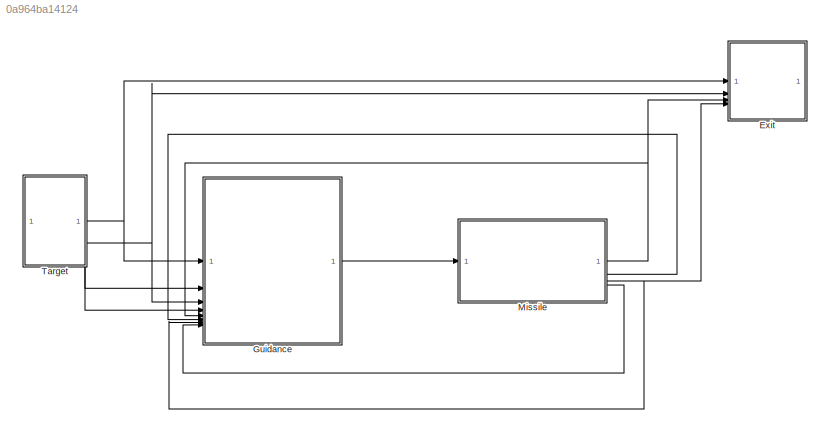
MODEL slx_0a964ba14124
KIND model
CONFIG AbsTol = auto
CONFIG EnableMultiTasking = off
CONFIG FixedStep = dt
CONFIG MaxStep = auto
CONFIG MinStep = auto
CONFIG RelTol = 1e-3
CONFIG SampleTimeConstraint = Unconstrained
CONFIG SolverName = ode5
CONFIG StartTime = 0.0
CONFIG StopTime = tf
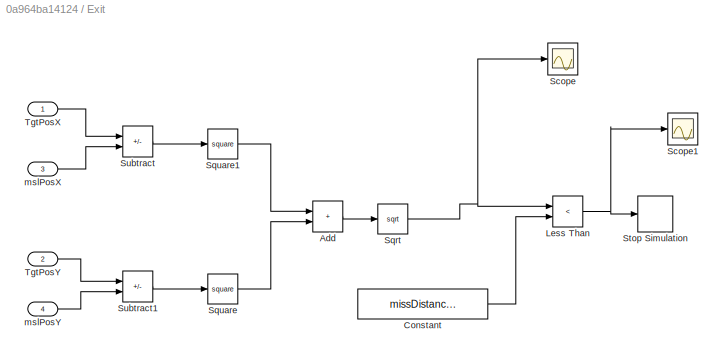
BLOCK [SubSystem] Exit
BLOCK [Sum] Exit/Add
  IconShape = rectangular
BLOCK [Constant] Exit/Constant
  Value = missDistanceThreshold
BLOCK [RelationalOperator] Exit/Less Than
  InputSameDT = off
  Operator = <
  OutDataTypeStr = boolean
  RndMeth = Simplest
BLOCK [Scope] Exit/Scope
  Floating = off
  NumInputPorts = 1
  ScopeSpecificationString = Simulink.scopes.TimeScopeBlockCfg('CurrentConfiguration', extmgr.ConfigurationSet(extmgr.Configuration('Core','General UI',true),extmgr.Configuration('Core','Source UI',true),extmgr.Configuration('Sources','WiredSimulink',true,'DataLoggingVariableName','ScopeData18'),extmgr.Configuration('Visuals','Time Domain',true,'SerializedDisplays',{struct('MinYLimReal','-37.14125','MaxYLimReal','344.06144','...<+1404ch>
BLOCK [Scope] Exit/Scope1
  Floating = off
  NumInputPorts = 1
  ScopeSpecificationString = Simulink.scopes.TimeScopeBlockCfg('CurrentConfiguration', extmgr.ConfigurationSet(extmgr.Configuration('Core','General UI',true),extmgr.Configuration('Core','Source UI',true),extmgr.Configuration('Sources','WiredSimulink',true,'DataLoggingVariableName','ScopeData19'),extmgr.Configuration('Visuals','Time Domain',true,'SerializedDisplays',{struct('MinYLimReal','-0.125','MaxYLimReal','1.125','YLabelR...<+1387ch>
BLOCK [Sqrt] Exit/Sqrt
BLOCK [Math] Exit/Square
  Operator = square
BLOCK [Math] Exit/Square1
  Operator = square
BLOCK [Stop] Exit/Stop Simulation
BLOCK [Sum] Exit/Subtract
  IconShape = rectangular
  Inputs = +-
BLOCK [Sum] Exit/Subtract1
  IconShape = rectangular
  Inputs = +-
BLOCK [Inport] Exit/TgtPosX
BLOCK [Inport] Exit/TgtPosY
  Port = 2
BLOCK [Inport] Exit/mslPosX
  Port = 3
BLOCK [Inport] Exit/mslPosY
  Port = 4
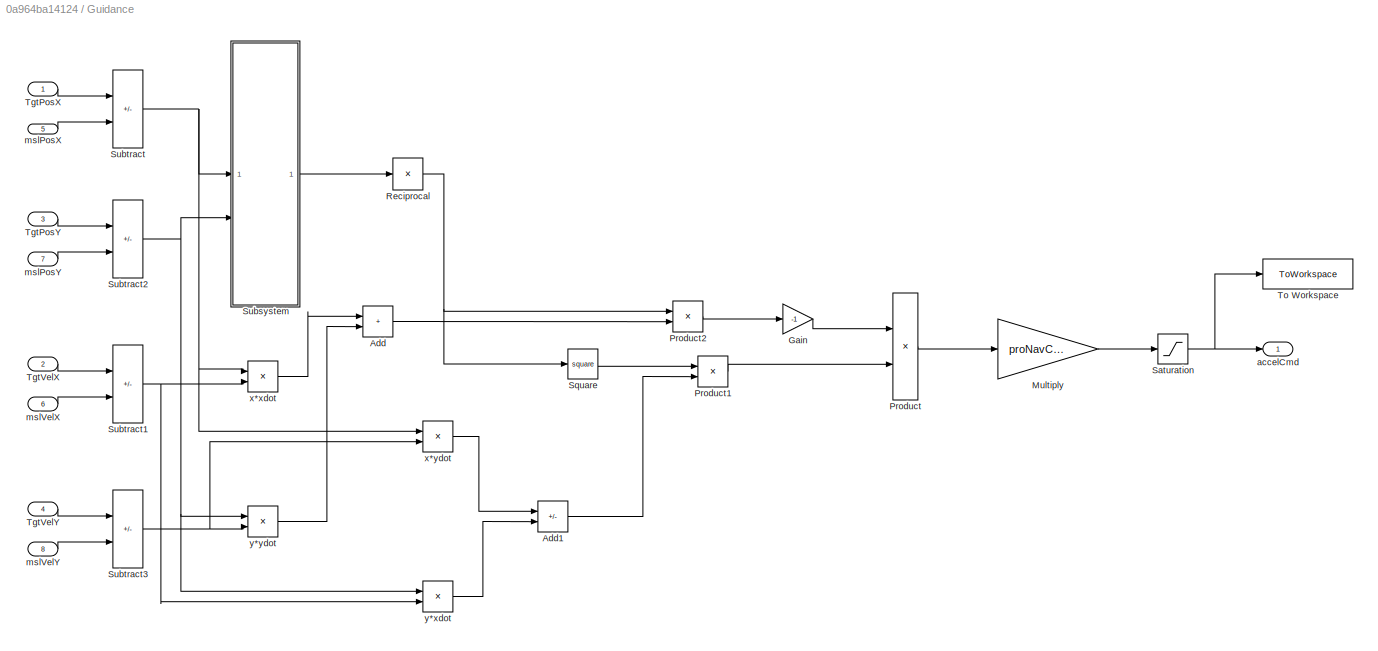
BLOCK [SubSystem] Guidance
BLOCK [Sum] Guidance/Add
  IconShape = rectangular
BLOCK [Sum] Guidance/Add1
  IconShape = rectangular
  Inputs = +-
BLOCK [Gain] Guidance/Gain
  Gain = -1
BLOCK [Gain] Guidance/Multiply
  Gain = proNavConst
BLOCK [Product] Guidance/Product
BLOCK [Product] Guidance/Product1
BLOCK [Product] Guidance/Product2
BLOCK [Product] Guidance/Reciprocal
  Inputs = /
BLOCK [Saturate] Guidance/Saturation
  LowerLimit = -50
  UpperLimit = 50
BLOCK [Math] Guidance/Square
  Operator = square
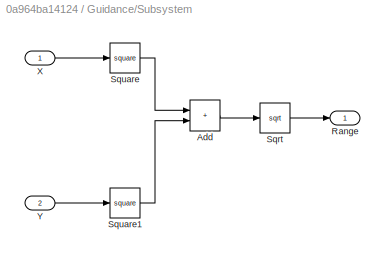
BLOCK [SubSystem] Guidance/Subsystem
BLOCK [Sum] Guidance/Subsystem/Add
  IconShape = rectangular
BLOCK [Outport] Guidance/Subsystem/Range
BLOCK [Sqrt] Guidance/Subsystem/Sqrt
BLOCK [Math] Guidance/Subsystem/Square
  Operator = square
BLOCK [Math] Guidance/Subsystem/Square1
  Operator = square
BLOCK [Inport] Guidance/Subsystem/X
BLOCK [Inport] Guidance/Subsystem/Y
  Port = 2
BLOCK [Sum] Guidance/Subtract
  IconShape = rectangular
  Inputs = +-
BLOCK [Sum] Guidance/Subtract1
  IconShape = rectangular
  Inputs = +-
BLOCK [Sum] Guidance/Subtract2
  IconShape = rectangular
  Inputs = +-
BLOCK [Sum] Guidance/Subtract3
  IconShape = rectangular
  Inputs = +-
BLOCK [Inport] Guidance/TgtPosX
BLOCK [Inport] Guidance/TgtPosY
  Port = 3
BLOCK [Inport] Guidance/TgtVelX
  Port = 2
BLOCK [Inport] Guidance/TgtVelY
  Port = 4
BLOCK [ToWorkspace] Guidance/To Workspace
  FixptAsFi = on
  MaxDataPoints = inf
  SampleTime = -1
  VariableName = accelY
BLOCK [Outport] Guidance/accelCmd
BLOCK [Inport] Guidance/mslPosX
  Port = 5
BLOCK [Inport] Guidance/mslPosY
  Port = 7
BLOCK [Inport] Guidance/mslVelX
  Port = 6
BLOCK [Inport] Guidance/mslVelY
  Port = 8
BLOCK [Product] Guidance/x*xdot
BLOCK [Product] Guidance/x*ydot
BLOCK [Product] Guidance/y*xdot
BLOCK [Product] Guidance/y*ydot
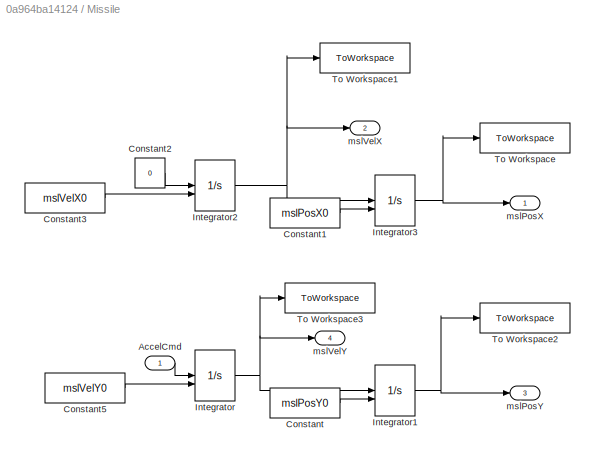
BLOCK [SubSystem] Missile
BLOCK [Inport] Missile/AccelCmd
BLOCK [Constant] Missile/Constant
  Value = mslPosY0
BLOCK [Constant] Missile/Constant1
  Value = mslPosX0
BLOCK [Constant] Missile/Constant2
  Value = 0
BLOCK [Constant] Missile/Constant3
  Value = mslVelX0
BLOCK [Constant] Missile/Constant5
  Value = mslVelY0
BLOCK [Integrator] Missile/Integrator
  InitialConditionSource = external
BLOCK [Integrator] Missile/Integrator1
  InitialConditionSource = external
BLOCK [Integrator] Missile/Integrator2
  InitialConditionSource = external
BLOCK [Integrator] Missile/Integrator3
  InitialConditionSource = external
BLOCK [ToWorkspace] Missile/To Workspace
  FixptAsFi = on
  MaxDataPoints = inf
  SampleTime = -1
  VariableName = mslPosX
BLOCK [ToWorkspace] Missile/To Workspace1
  FixptAsFi = on
  MaxDataPoints = inf
  SampleTime = -1
  VariableName = mslVelX
BLOCK [ToWorkspace] Missile/To Workspace2
  FixptAsFi = on
  MaxDataPoints = inf
  SampleTime = -1
  VariableName = mslPosY
BLOCK [ToWorkspace] Missile/To Workspace3
  FixptAsFi = on
  MaxDataPoints = inf
  SampleTime = -1
  VariableName = mslVelY
BLOCK [Outport] Missile/mslPosX
BLOCK [Outport] Missile/mslPosY
  Port = 3
BLOCK [Outport] Missile/mslVelX
  Port = 2
BLOCK [Outport] Missile/mslVelY
  Port = 4
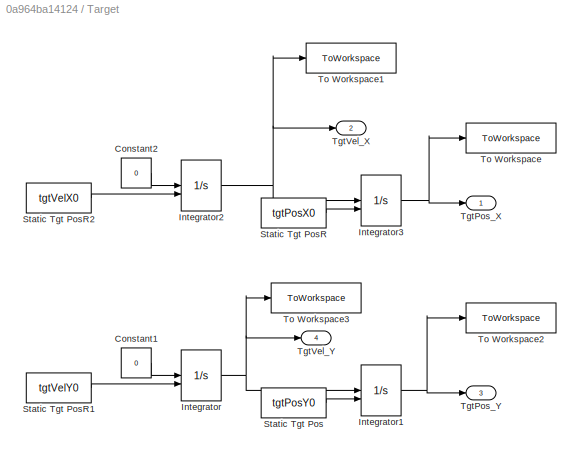
BLOCK [SubSystem] Target
BLOCK [Constant] Target/Constant1
  Value = 0
BLOCK [Constant] Target/Constant2
  Value = 0
BLOCK [Integrator] Target/Integrator
  InitialConditionSource = external
BLOCK [Integrator] Target/Integrator1
  InitialConditionSource = external
BLOCK [Integrator] Target/Integrator2
  InitialConditionSource = external
BLOCK [Integrator] Target/Integrator3
  InitialConditionSource = external
BLOCK [Constant] Target/Static Tgt Pos
  Value = tgtPosY0
BLOCK [Constant] Target/Static Tgt PosR
  Value = tgtPosX0
BLOCK [Constant] Target/Static Tgt PosR1
  Value = tgtVelY0
BLOCK [Constant] Target/Static Tgt PosR2
  Value = tgtVelX0
BLOCK [Outport] Target/TgtPos_X
BLOCK [Outport] Target/TgtPos_Y
  Port = 3
BLOCK [Outport] Target/TgtVel_X
  Port = 2
BLOCK [Outport] Target/TgtVel_Y
  Port = 4
BLOCK [ToWorkspace] Target/To Workspace
  FixptAsFi = on
  MaxDataPoints = inf
  SampleTime = -1
  VariableName = tgtPosX
BLOCK [ToWorkspace] Target/To Workspace1
  FixptAsFi = on
  MaxDataPoints = inf
  SampleTime = -1
  VariableName = tgtVelX
BLOCK [ToWorkspace] Target/To Workspace2
  FixptAsFi = on
  MaxDataPoints = inf
  SampleTime = -1
  VariableName = tgtPosY
BLOCK [ToWorkspace] Target/To Workspace3
  FixptAsFi = on
  MaxDataPoints = inf
  SampleTime = -1
  VariableName = tgtVelY
LINE Exit/Add:1 -> Exit/Sqrt:1
LINE Exit/Constant:1 -> Exit/Less Than:2
NET Exit/Less Than:1 -> Exit/Scope1:1, Exit/Stop Simulation:1
NET Exit/Sqrt:1 -> Exit/Less Than:1, Exit/Scope:1
LINE Exit/Square1:1 -> Exit/Add:1
LINE Exit/Square:1 -> Exit/Add:2
LINE Exit/Subtract1:1 -> Exit/Square:1
LINE Exit/Subtract:1 -> Exit/Square1:1
LINE Exit/TgtPosX:1 -> Exit/Subtract:1
LINE Exit/TgtPosY:1 -> Exit/Subtract1:1
LINE Exit/mslPosX:1 -> Exit/Subtract:2
LINE Exit/mslPosY:1 -> Exit/Subtract1:2
LINE Guidance/Add1:1 -> Guidance/Product1:2
LINE Guidance/Add:1 -> Guidance/Product2:2
LINE Guidance/Gain:1 -> Guidance/Product:1
LINE Guidance/Multiply:1 -> Guidance/Saturation:1
LINE Guidance/Product1:1 -> Guidance/Product:2
LINE Guidance/Product2:1 -> Guidance/Gain:1
LINE Guidance/Product:1 -> Guidance/Multiply:1
NET Guidance/Reciprocal:1 -> Guidance/Product2:1, Guidance/Square:1
NET Guidance/Saturation:1 -> Guidance/To Workspace:1, Guidance/accelCmd:1
LINE Guidance/Square:1 -> Guidance/Product1:1
LINE Guidance/Subsystem/Add:1 -> Guidance/Subsystem/Sqrt:1
LINE Guidance/Subsystem/Sqrt:1 -> Guidance/Subsystem/Range:1
LINE Guidance/Subsystem/Square1:1 -> Guidance/Subsystem/Add:2
LINE Guidance/Subsystem/Square:1 -> Guidance/Subsystem/Add:1
LINE Guidance/Subsystem/X:1 -> Guidance/Subsystem/Square:1
LINE Guidance/Subsystem/Y:1 -> Guidance/Subsystem/Square1:1
LINE Guidance/Subsystem:1 -> Guidance/Reciprocal:1
NET Guidance/Subtract1:1 -> Guidance/x*xdot:2, Guidance/y*xdot:2
NET Guidance/Subtract2:1 -> Guidance/Subsystem:2, Guidance/y*xdot:1, Guidance/y*ydot:1
NET Guidance/Subtract3:1 -> Guidance/x*ydot:2, Guidance/y*ydot:2
NET Guidance/Subtract:1 -> Guidance/Subsystem:1, Guidance/x*xdot:1, Guidance/x*ydot:1
LINE Guidance/TgtPosX:1 -> Guidance/Subtract:1
LINE Guidance/TgtPosY:1 -> Guidance/Subtract2:1
LINE Guidance/TgtVelX:1 -> Guidance/Subtract1:1
LINE Guidance/TgtVelY:1 -> Guidance/Subtract3:1
LINE Guidance/mslPosX:1 -> Guidance/Subtract:2
LINE Guidance/mslPosY:1 -> Guidance/Subtract2:2
LINE Guidance/mslVelX:1 -> Guidance/Subtract1:2
LINE Guidance/mslVelY:1 -> Guidance/Subtract3:2
LINE Guidance/x*xdot:1 -> Guidance/Add:1
LINE Guidance/x*ydot:1 -> Guidance/Add1:1
LINE Guidance/y*xdot:1 -> Guidance/Add1:2
LINE Guidance/y*ydot:1 -> Guidance/Add:2
LINE Guidance:1 -> Missile:1
LINE Missile/AccelCmd:1 -> Missile/Integrator:1
LINE Missile/Constant1:1 -> Missile/Integrator3:2
LINE Missile/Constant2:1 -> Missile/Integrator2:1
LINE Missile/Constant3:1 -> Missile/Integrator2:2
LINE Missile/Constant5:1 -> Missile/Integrator:2
LINE Missile/Constant:1 -> Missile/Integrator1:2
NET Missile/Integrator1:1 -> Missile/To Workspace2:1, Missile/mslPosY:1
NET Missile/Integrator2:1 -> Missile/Integrator3:1, Missile/To Workspace1:1, Missile/mslVelX:1
NET Missile/Integrator3:1 -> Missile/To Workspace:1, Missile/mslPosX:1
NET Missile/Integrator:1 -> Missile/Integrator1:1, Missile/To Workspace3:1, Missile/mslVelY:1
NET Missile:1 -> Exit:3, Guidance:5
LINE Missile:2 -> Guidance:6
NET Missile:3 -> Exit:4, Guidance:7
LINE Missile:4 -> Guidance:8
LINE Target/Constant1:1 -> Target/Integrator:1
LINE Target/Constant2:1 -> Target/Integrator2:1
NET Target/Integrator1:1 -> Target/TgtPos_Y:1, Target/To Workspace2:1
NET Target/Integrator2:1 -> Target/Integrator3:1, Target/TgtVel_X:1, Target/To Workspace1:1
NET Target/Integrator3:1 -> Target/TgtPos_X:1, Target/To Workspace:1
NET Target/Integrator:1 -> Target/Integrator1:1, Target/TgtVel_Y:1, Target/To Workspace3:1
LINE Target/Static Tgt Pos:1 -> Target/Integrator1:2
LINE Target/Static Tgt PosR1:1 -> Target/Integrator:2
LINE Target/Static Tgt PosR2:1 -> Target/Integrator2:2
LINE Target/Static Tgt PosR:1 -> Target/Integrator3:2
NET Target:1 -> Exit:1, Guidance:1
LINE Target:2 -> Guidance:2
NET Target:3 -> Exit:2, Guidance:3
LINE Target:4 -> Guidance:4
note: NET lines group one-source signal fan-out (src -> all destinations, sorted); 1:1 wires keep LINE
